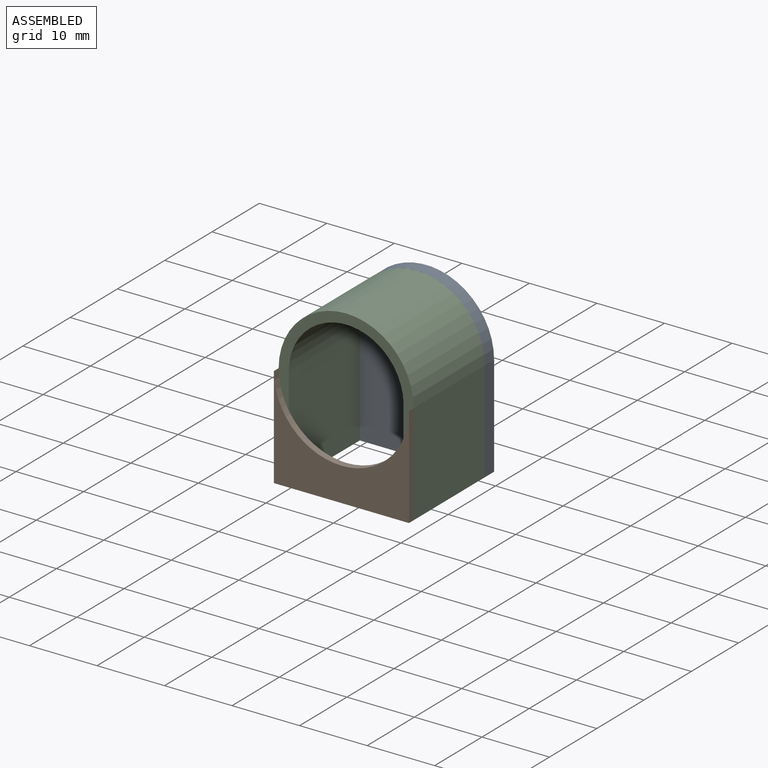
[diagram: assembled view]
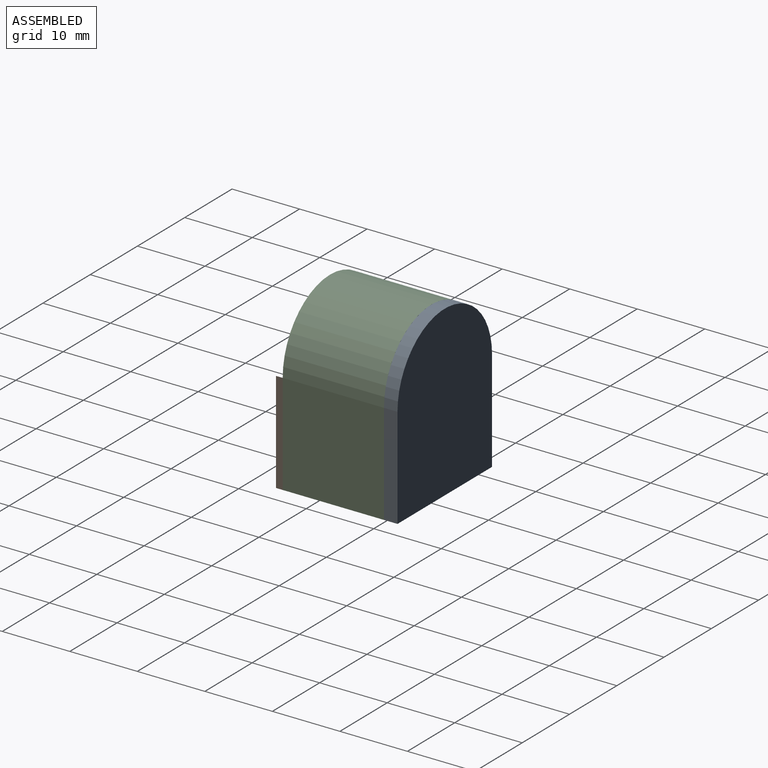
[diagram: assembled view, second angle]
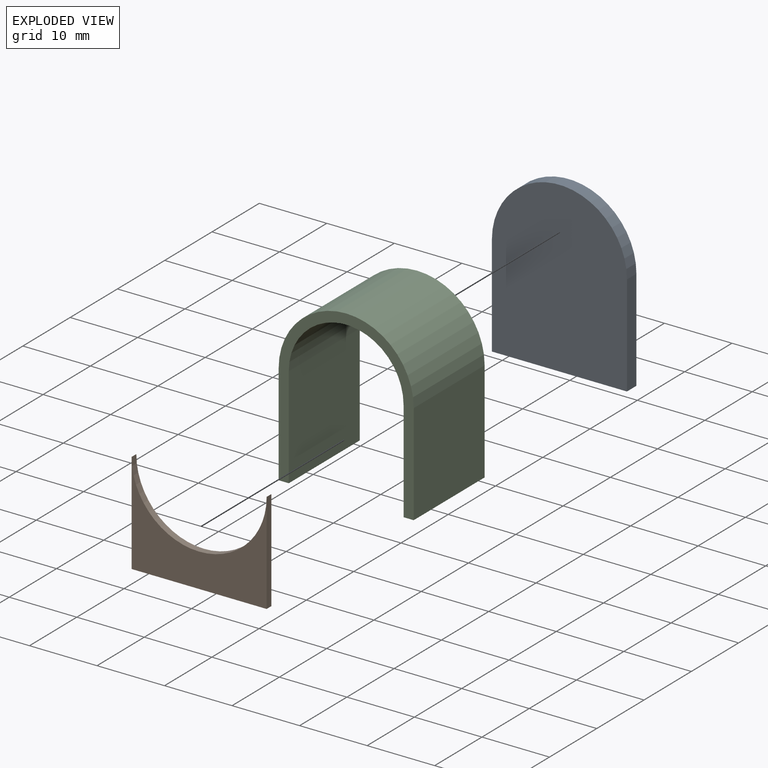
[diagram: exploded view]
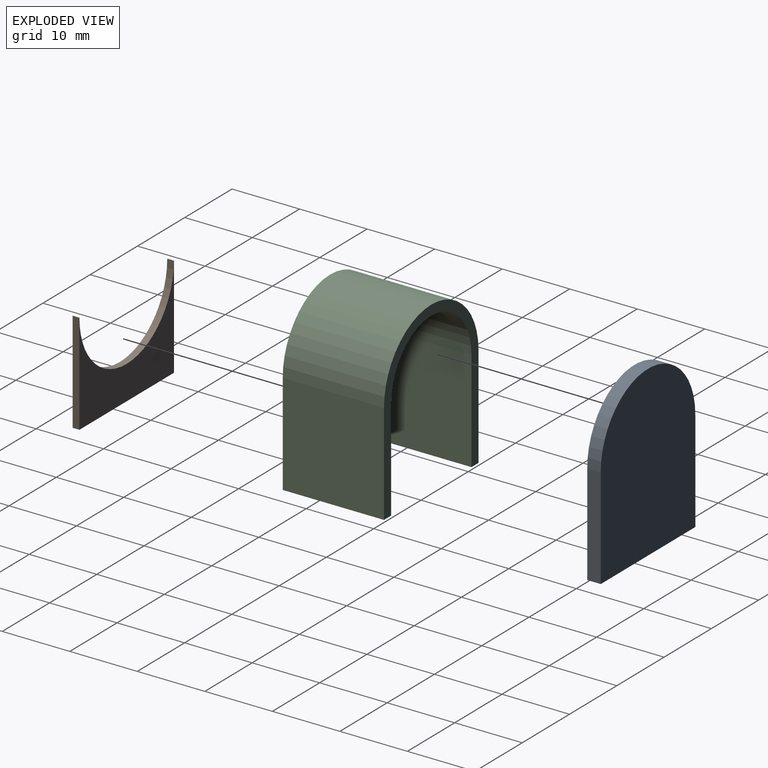
[diagram: exploded view, second angle]
ASSEMBLY  parts=3 mates=2
PART A: 6 faces, bbox 20x2x25 mm
  f0: plane 15x2mm, normal (1,0,0), area 30mm2, adj f1,f3,f4,f5
  f1: cylinder r=10mm len=20mm, axis (0,1,0), area 62.8mm2, adj f0,f2,f4,f5
  f2: plane 15x2mm, normal (-1,0,0), area 30mm2, adj f1,f3,f4,f5
  f3: plane 20x2mm, normal (0,0,-1), area 40mm2, adj f0,f2,f4,f5
  f4: plane 25x20mm, normal (0,-1,0), area 457.1mm2, adj f0,f1,f2,f3
  f5: plane 25x20mm, normal (0,1,0), area 457.1mm2, adj f0,f1,f2,f3
PART B: 6 faces, bbox 20x1x15 mm
  f0: plane 15x1mm, normal (-1,0,0), area 15mm2, adj f1,f3,f4,f5
  f1: plane 20x1mm, normal (0,0,-1), area 20mm2, adj f0,f2,f4,f5
  f2: plane 15x1mm, normal (1,0,0), area 15mm2, adj f1,f3,f4,f5
  f3: cylinder r=10mm len=20mm, axis (0,1,0), area 31.4mm2, adj f0,f2,f4,f5
  f4: plane 20x15mm, normal (0,-1,0), area 142.9mm2, adj f0,f1,f2,f3
  f5: plane 20x15mm, normal (0,1,0), area 142.9mm2, adj f0,f1,f2,f3
PART C: 10 faces, bbox 20x15x25 mm
  f0: cylinder r=8.5mm len=17mm, axis (0,1,0), area 400.6mm2, adj f1,f7,f8,f9
  f1: plane 15x15mm, normal (-1,0,0), area 225mm2, adj f0,f2,f8,f9
  f2: plane 15x1.5mm, normal (0,0,-1), area 22.5mm2, adj f1,f3,f8,f9
  f3: plane 15x15mm, normal (1,0,0), area 225mm2, adj f2,f4,f8,f9
  f4: cylinder r=10mm len=20mm, axis (0,1,0), area 471.2mm2, adj f3,f5,f8,f9
  f5: plane 15x15mm, normal (-1,0,0), area 225mm2, adj f4,f6,f8,f9
  f6: plane 15x1.5mm, normal (0,0,-1), area 22.5mm2, adj f5,f7,f8,f9
  f7: plane 15x15mm, normal (1,0,0), area 225mm2, adj f0,f6,f8,f9
  f8: plane 25x20mm, normal (0,-1,0), area 88.6mm2, adj f0,f1,f2,f3,f4,f5,f6,f7
  f9: plane 25x20mm, normal (0,1,0), area 88.6mm2, adj f0,f1,f2,f3,f4,f5,f6,f7
PLACE A t=(8.2,-17.73,16.53)mm
PLACE B t=(8.2,-34.73,16.53)mm
PLACE C t=(8.2,-19.73,16.53)mm
MATE fastened B.f3 <-> C.f0  axis (0,1,0) through (8.2,-34.73,16.53)mm
MATE fastened A.f1 <-> C.f0  axis (0,-1,0) through (8.2,-19.73,16.53)mm
